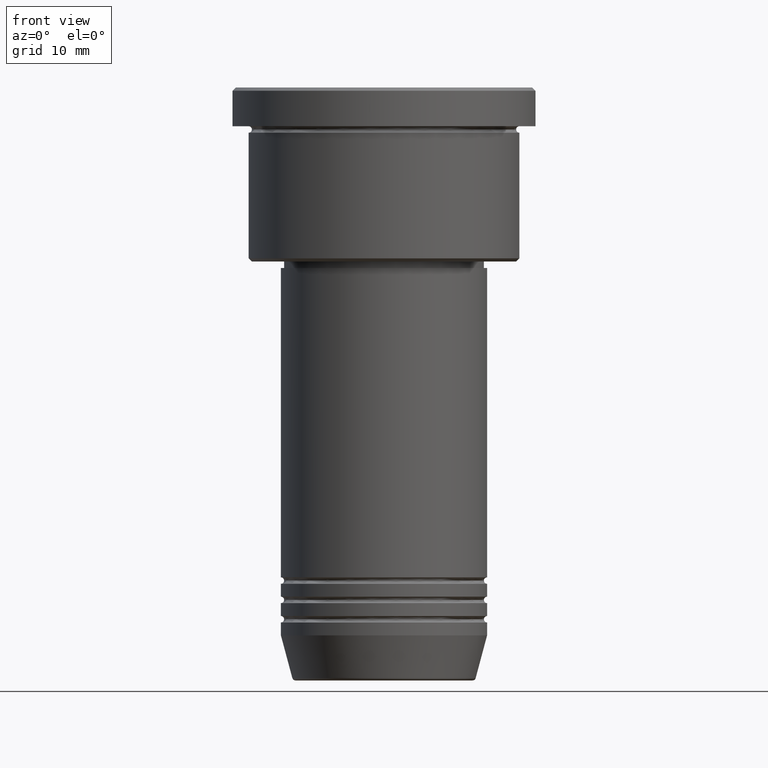
[diagram: clean part render]
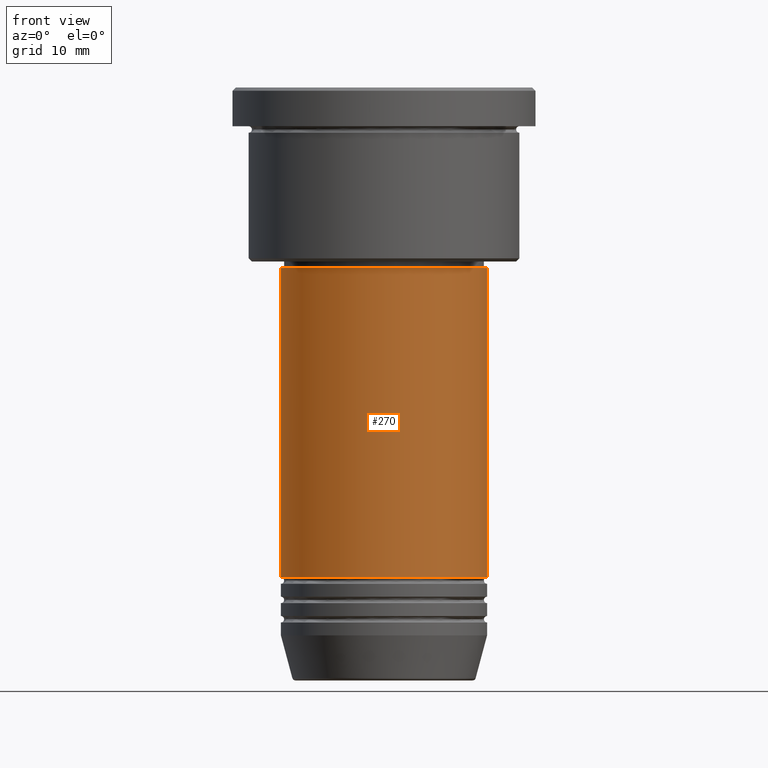
[diagram: same view with one face highlighted and labeled with its STEP entity id]
A machine part, front view. The second image highlights one B-rep face of the part: STEP entity #270.
In plain terms, the highlighted cylindrical surface (partial cylindrical patch) has radius 16 mm, axis along (-0, -0, 1).
Its self-contained STEP definition (entity closure, byte-faithful):
#5 = DIRECTION ( 'NONE',  ( 1.000000000000000000, 0.000000000000000000, 0.000000000000000000 ) ) ;
#52 = VERTEX_POINT ( 'NONE', #937 ) ;
#106 = VERTEX_POINT ( 'NONE', #574 ) ;
#137 = EDGE_CURVE ( 'NONE', #52, #106, #319, .T. ) ;
#166 = CIRCLE ( 'NONE', #391, 16.00000000000000000 ) ;
#187 = DIRECTION ( 'NONE',  ( -0.000000000000000000, -0.000000000000000000, 1.000000000000000000 ) ) ;
#221 = CARTESIAN_POINT ( 'NONE',  ( -16.00000000000000000, 1.959434878635765131E-15, 0.000000000000000000 ) ) ;
#238 = ORIENTED_EDGE ( 'NONE', *, *, #644, .T. ) ;
#250 = CARTESIAN_POINT ( 'NONE',  ( 0.000000000000000000, 0.000000000000000000, -75.99999999999997158 ) ) ;
#270 = ADVANCED_FACE ( 'NONE', ( #295 ), #724, .T. ) ;
#275 = CARTESIAN_POINT ( 'NONE',  ( 16.00000000000000000, 0.000000000000000000, 0.000000000000000000 ) ) ;
#295 = FACE_OUTER_BOUND ( 'NONE', #1169, .T. ) ;
#298 = ORIENTED_EDGE ( 'NONE', *, *, #1065, .F. ) ;
#307 = CARTESIAN_POINT ( 'NONE',  ( -16.00000000000000000, 1.959434878635765131E-15, -75.99999999999997158 ) ) ;
#310 = LINE ( 'NONE', #221, #358 ) ;
#319 = CIRCLE ( 'NONE', #771, 16.00000000000000000 ) ;
#358 = VECTOR ( 'NONE', #1054, 1000.000000000000000 ) ;
#391 = AXIS2_PLACEMENT_3D ( 'NONE', #250, #874, #779 ) ;
#392 = VECTOR ( 'NONE', #187, 1000.000000000000000 ) ;
#405 = VERTEX_POINT ( 'NONE', #549 ) ;
#471 = DIRECTION ( 'NONE',  ( 1.000000000000000000, 0.000000000000000000, 0.000000000000000000 ) ) ;
#549 = CARTESIAN_POINT ( 'NONE',  ( 16.00000000000000000, 0.000000000000000000, -75.99999999999997158 ) ) ;
#574 = CARTESIAN_POINT ( 'NONE',  ( 16.00000000000000000, 0.000000000000000000, -27.99999999999996803 ) ) ;
#617 = LINE ( 'NONE', #275, #392 ) ;
#644 = EDGE_CURVE ( 'NONE', #1064, #405, #166, .T. ) ;
#692 = ORIENTED_EDGE ( 'NONE', *, *, #137, .F. ) ;
#724 = CYLINDRICAL_SURFACE ( 'NONE', #873, 16.00000000000000000 ) ;
#738 = CARTESIAN_POINT ( 'NONE',  ( 0.000000000000000000, 0.000000000000000000, 0.000000000000000000 ) ) ;
#771 = AXIS2_PLACEMENT_3D ( 'NONE', #1131, #1125, #471 ) ;
#775 = EDGE_CURVE ( 'NONE', #405, #106, #617, .T. ) ;
#779 = DIRECTION ( 'NONE',  ( 1.000000000000000000, 0.000000000000000000, 0.000000000000000000 ) ) ;
#828 = DIRECTION ( 'NONE',  ( -0.000000000000000000, -0.000000000000000000, 1.000000000000000000 ) ) ;
#863 = ORIENTED_EDGE ( 'NONE', *, *, #775, .T. ) ;
#873 = AXIS2_PLACEMENT_3D ( 'NONE', #738, #828, #5 ) ;
#874 = DIRECTION ( 'NONE',  ( -0.000000000000000000, -0.000000000000000000, 1.000000000000000000 ) ) ;
#937 = CARTESIAN_POINT ( 'NONE',  ( -16.00000000000000000, 1.959434878635765131E-15, -27.99999999999996803 ) ) ;
#1054 = DIRECTION ( 'NONE',  ( -0.000000000000000000, -0.000000000000000000, 1.000000000000000000 ) ) ;
#1064 = VERTEX_POINT ( 'NONE', #307 ) ;
#1065 = EDGE_CURVE ( 'NONE', #1064, #52, #310, .T. ) ;
#1125 = DIRECTION ( 'NONE',  ( -0.000000000000000000, -0.000000000000000000, 1.000000000000000000 ) ) ;
#1131 = CARTESIAN_POINT ( 'NONE',  ( 0.000000000000000000, 0.000000000000000000, -27.99999999999996803 ) ) ;
#1169 = EDGE_LOOP ( 'NONE', ( #298, #238, #863, #692 ) ) ;